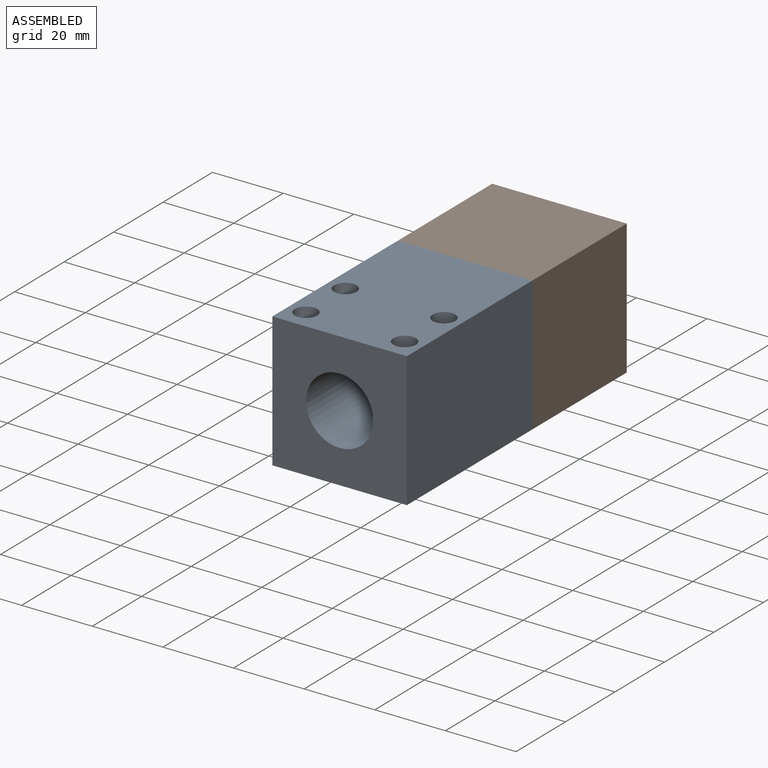
[diagram: assembled view]
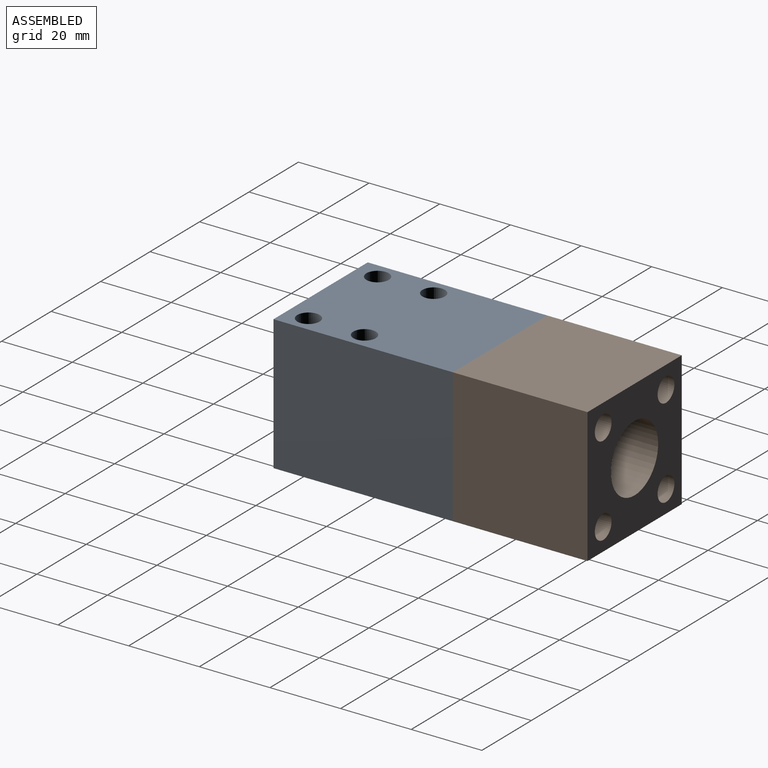
[diagram: assembled view, second angle]
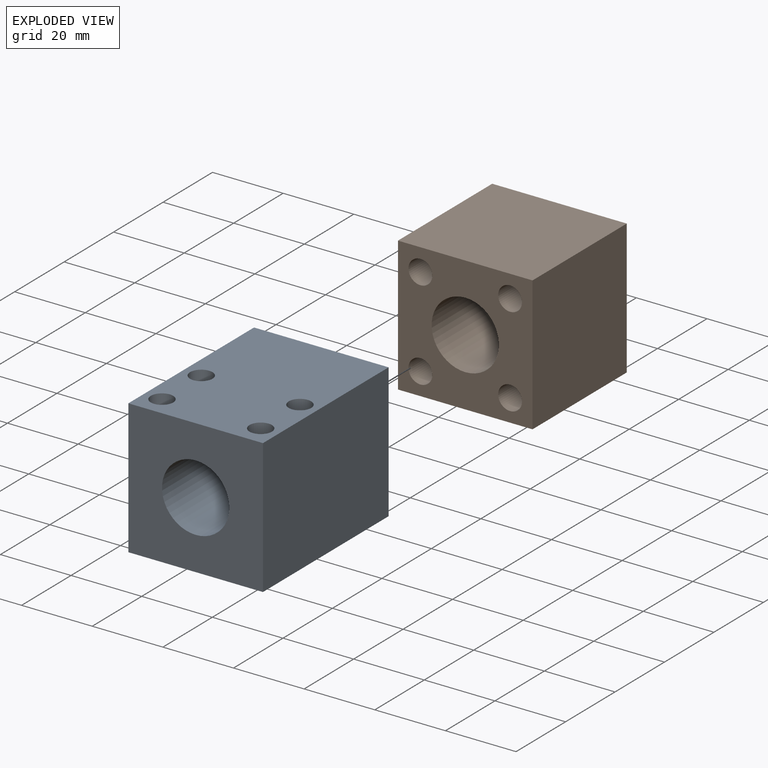
[diagram: exploded view]
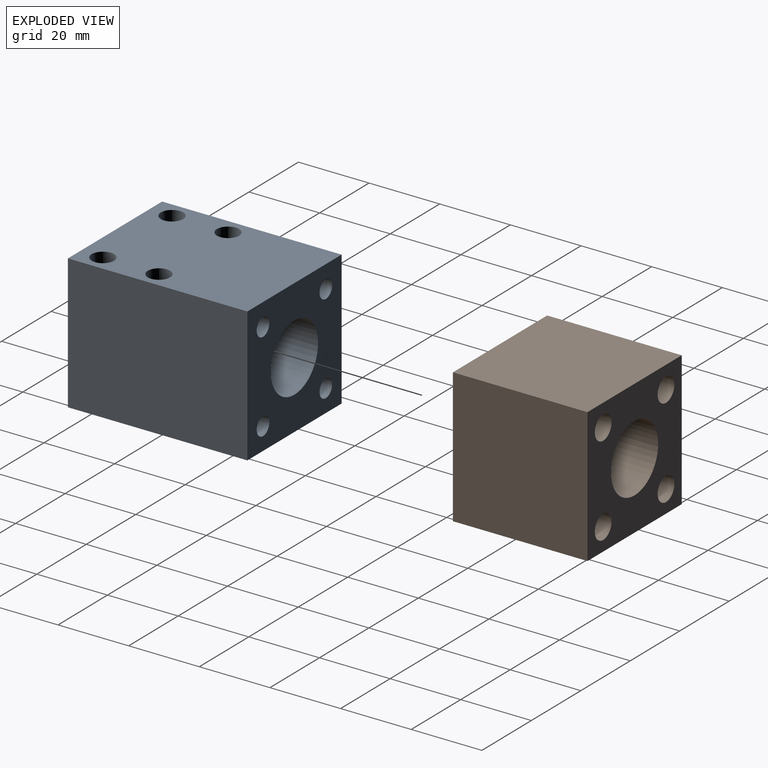
[diagram: exploded view, second angle]
ASSEMBLY  parts=2 mates=2
PART A: 19 faces, bbox 38.1x50.8x38.1 mm
  f0: plane 50.8x38.1mm, normal (0,0,1), area 1808.8mm2, adj f1,f4,f5,f6,f7,f8,f9,f10
  f1: plane 50.8x38.1mm, normal (-1,0,0), area 1935.5mm2, adj f0,f2,f5,f6
  f2: plane 50.8x38.1mm, normal (0,0,-1), area 1808.8mm2, adj f1,f4,f5,f6,f7,f8,f9,f10
  f3: cylinder r=9.53mm len=50.8mm, axis (0,-1,0), area 3040.2mm2, adj f5,f6
  f4: plane 50.8x38.1mm, normal (1,0,0), area 1935.5mm2, adj f0,f2,f5,f6
  f5: plane 38.1x38.1mm, normal (0,1,0), area 1084.7mm2, adj f0,f1,f2,f3,f4,f12,f14,f16
  f6: plane 38.1x38.1mm, normal (0,-1,0), area 1166.6mm2, adj f0,f1,f2,f3,f4
  f7: cylinder r=3.17mm len=38.1mm, axis (0,0,1), area 760.1mm2, adj f0,f2
  f8: cylinder r=3.17mm len=38.1mm, axis (0,0,1), area 760.1mm2, adj f0,f2
  f9: cylinder r=3.17mm len=38.1mm, axis (0,0,1), area 760.1mm2, adj f0,f2
  f10: cylinder r=3.17mm len=38.1mm, axis (0,0,1), area 760.1mm2, adj f0,f2
  f11: cone r=0mm half-angle=59deg, axis (0,1,0), area 23.9mm2, adj f12
  f12: cylinder r=2.55mm len=16.51mm, axis (0,1,0), area 264.8mm2, adj f5,f11
  f13: cone r=0mm half-angle=59deg, axis (0,1,0), area 23.9mm2, adj f14
  f14: cylinder r=2.55mm len=16.51mm, axis (0,1,0), area 264.8mm2, adj f5,f13
  f15: cone r=0mm half-angle=59deg, axis (0,1,0), area 23.9mm2, adj f16
  f16: cylinder r=2.55mm len=16.51mm, axis (0,1,0), area 264.8mm2, adj f5,f15
  f17: cone r=0mm half-angle=59deg, axis (0,1,0), area 23.9mm2, adj f18
  f18: cylinder r=2.55mm len=16.51mm, axis (0,1,0), area 264.8mm2, adj f5,f17
PART B: 11 faces, bbox 38.1x38.1x38.1 mm
  f0: plane 38.1x38.1mm, normal (0,0,1), area 1451.6mm2, adj f1,f4,f5,f6
  f1: plane 38.1x38.1mm, normal (-1,0,0), area 1451.6mm2, adj f0,f2,f5,f6
  f2: plane 38.1x38.1mm, normal (0,0,-1), area 1451.6mm2, adj f1,f4,f5,f6
  f3: cylinder r=9.53mm len=38.1mm, axis (0,-1,0), area 2280.2mm2, adj f5,f6
  f4: plane 38.1x38.1mm, normal (1,0,0), area 1451.6mm2, adj f0,f2,f5,f6
  f5: plane 38.1x38.1mm, normal (0,1,0), area 1023.2mm2, adj f0,f1,f2,f3,f4,f7,f8,f9
  f6: plane 38.1x38.1mm, normal (0,-1,0), area 1023.2mm2, adj f0,f1,f2,f3,f4,f7,f8,f9
  f7: cylinder r=3.38mm len=38.1mm, axis (0,-1,0), area 808.7mm2, adj f5,f6
  f8: cylinder r=3.38mm len=38.1mm, axis (0,-1,0), area 808.7mm2, adj f5,f6
  f9: cylinder r=3.38mm len=38.1mm, axis (0,-1,0), area 808.7mm2, adj f5,f6
  f10: cylinder r=3.38mm len=38.1mm, axis (0,-1,0), area 808.7mm2, adj f5,f6
PLACE A t=(84.56,-66.48,28.42)mm
PLACE B t=(84.56,-15.68,28.42)mm
MATE cylindrical B.f3 <-> A.f3  axis (0,1,0) through (84.56,22.42,28.42)mm
MATE parallel B.f6 <-> A.f5  axis (0,-1,0) through (65.51,-15.68,28.42)mm
